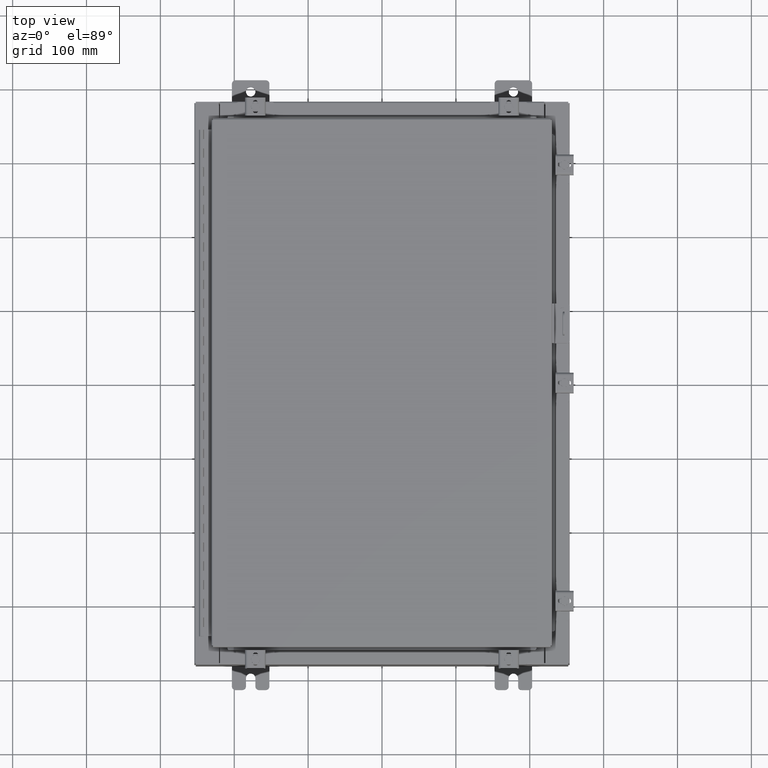
[diagram: clean part render]
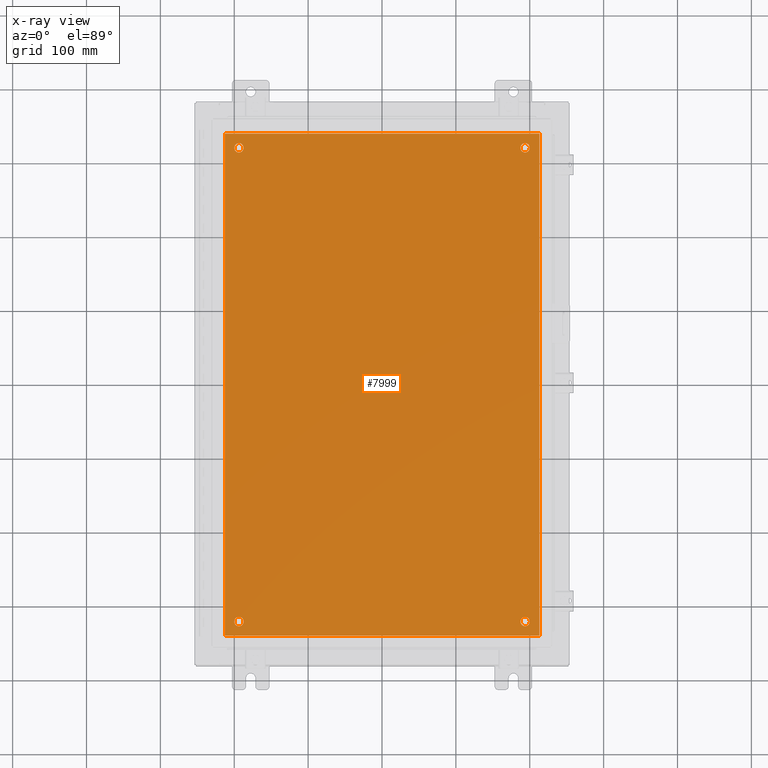
[diagram: x-ray — body ghosted, one internal face saturated and labeled with its STEP entity id]
A machine part, top view, then the same camera in x-ray: the body is ghosted and one INTERNAL B-rep face — a face not visible from any outside direction — is saturated and labeled: STEP entity #7999.
In plain terms, the highlighted planar face has unit normal (0, 0, -1).
Its self-contained STEP definition (entity closure, byte-faithful):
#60 = CIRCLE ( 'NONE', #16790, 0.2499999999999998100 ) ;
#804 = DIRECTION ( 'NONE',  ( 1.000000000000000000, -0.0000000000000000000, -0.0000000000000000000 ) ) ;
#1036 = FACE_OUTER_BOUND ( 'NONE', #19308, .T. ) ;
#1048 = CARTESIAN_POINT ( 'NONE',  ( -7.625000000000002700, 12.62500000000000200, -0.1039999999999999800 ) ) ;
#1509 = VERTEX_POINT ( 'NONE', #8408 ) ;
#2265 = CARTESIAN_POINT ( 'NONE',  ( 7.875000000000001800, 12.62500000000000200, -0.1039999999999999800 ) ) ;
#2455 = AXIS2_PLACEMENT_3D ( 'NONE', #33242, #15738, #36247 ) ;
#2548 = DIRECTION ( 'NONE',  ( 0.0000000000000000000, 0.0000000000000000000, -1.000000000000000000 ) ) ;
#2684 = ORIENTED_EDGE ( 'NONE', *, *, #2820, .T. ) ;
#2820 = EDGE_CURVE ( 'NONE', #30189, #2896, #5511, .T. ) ;
#2896 = VERTEX_POINT ( 'NONE', #3041 ) ;
#2925 = AXIS2_PLACEMENT_3D ( 'NONE', #17126, #2548, #23041 ) ;
#2930 = EDGE_LOOP ( 'NONE', ( #16578, #10078 ) ) ;
#3041 = CARTESIAN_POINT ( 'NONE',  ( 7.375000000000004400, 12.62500000000000200, -0.1039999999999999800 ) ) ;
#3477 = AXIS2_PLACEMENT_3D ( 'NONE', #31994, #14468, #34978 ) ;
#3677 = CARTESIAN_POINT ( 'NONE',  ( 7.375000000000004400, -12.62500000000000200, -0.1039999999999999800 ) ) ;
#3960 = DIRECTION ( 'NONE',  ( -1.000000000000000000, 0.0000000000000000000, 0.0000000000000000000 ) ) ;
#4569 = ORIENTED_EDGE ( 'NONE', *, *, #20819, .T. ) ;
#4650 = CARTESIAN_POINT ( 'NONE',  ( -7.375000000000003600, 12.62500000000000200, -0.1039999999999999800 ) ) ;
#4660 = CARTESIAN_POINT ( 'NONE',  ( -7.875000000000002700, 12.62500000000000200, -0.1039999999999999800 ) ) ;
#4777 = CIRCLE ( 'NONE', #18439, 0.2499999999999998100 ) ;
#5089 = CIRCLE ( 'NONE', #27364, 0.2499999999999987000 ) ;
#5511 = CIRCLE ( 'NONE', #6885, 0.2499999999999987000 ) ;
#5847 = DIRECTION ( 'NONE',  ( -0.0000000000000000000, -0.0000000000000000000, 1.000000000000000000 ) ) ;
#6259 = CIRCLE ( 'NONE', #33606, 0.2499999999999998100 ) ;
#6885 = AXIS2_PLACEMENT_3D ( 'NONE', #34915, #17353, #37862 ) ;
#6994 = CARTESIAN_POINT ( 'NONE',  ( 7.625000000000002700, -12.62500000000000200, -0.1039999999999999800 ) ) ;
#7409 = LINE ( 'NONE', #11252, #37678 ) ;
#7999 = ADVANCED_FACE ( 'NONE', ( #8764, #32131, #9679, #16582, #1036 ), #34672, .T. ) ;
#8408 = CARTESIAN_POINT ( 'NONE',  ( -7.875000000000002700, -12.62500000000000200, -0.1039999999999999800 ) ) ;
#8764 = FACE_BOUND ( 'NONE', #14816, .T. ) ;
#9449 = ORIENTED_EDGE ( 'NONE', *, *, #13815, .F. ) ;
#9679 = FACE_BOUND ( 'NONE', #33870, .T. ) ;
#9902 = DIRECTION ( 'NONE',  ( -1.000000000000000000, 0.0000000000000000000, 0.0000000000000000000 ) ) ;
#10078 = ORIENTED_EDGE ( 'NONE', *, *, #14564, .T. ) ;
#10693 = EDGE_CURVE ( 'NONE', #30695, #17554, #6259, .T. ) ;
#10754 = VERTEX_POINT ( 'NONE', #29385 ) ;
#11252 = CARTESIAN_POINT ( 'NONE',  ( 8.383000000000002700, -13.38299999999999200, -0.1039999999999992700 ) ) ;
#12188 = VECTOR ( 'NONE', #18573, 39.37007874015748100 ) ;
#13246 = VERTEX_POINT ( 'NONE', #26200 ) ;
#13815 = EDGE_CURVE ( 'NONE', #10754, #13246, #7409, .T. ) ;
#14252 = DIRECTION ( 'NONE',  ( 0.0000000000000000000, 1.000000000000000000, 0.0000000000000000000 ) ) ;
#14468 = DIRECTION ( 'NONE',  ( -0.0000000000000000000, -0.0000000000000000000, 1.000000000000000000 ) ) ;
#14564 = EDGE_CURVE ( 'NONE', #17554, #30695, #60, .T. ) ;
#14816 = EDGE_LOOP ( 'NONE', ( #32390, #32197 ) ) ;
#14881 = CARTESIAN_POINT ( 'NONE',  ( 7.625000000000002700, -12.62500000000000200, -0.1039999999999999800 ) ) ;
#15738 = DIRECTION ( 'NONE',  ( -0.0000000000000000000, -0.0000000000000000000, 1.000000000000000000 ) ) ;
#16020 = LINE ( 'NONE', #18344, #22901 ) ;
#16091 = ORIENTED_EDGE ( 'NONE', *, *, #16784, .F. ) ;
#16158 = CARTESIAN_POINT ( 'NONE',  ( -7.625000000000002700, -12.62500000000000200, -0.1039999999999999800 ) ) ;
#16207 = CIRCLE ( 'NONE', #3477, 0.2499999999999998100 ) ;
#16491 = LINE ( 'NONE', #24037, #31113 ) ;
#16578 = ORIENTED_EDGE ( 'NONE', *, *, #10693, .T. ) ;
#16582 = FACE_BOUND ( 'NONE', #2930, .T. ) ;
#16784 = EDGE_CURVE ( 'NONE', #37192, #27492, #20023, .T. ) ;
#16790 = AXIS2_PLACEMENT_3D ( 'NONE', #1048, #21515, #3960 ) ;
#17126 = CARTESIAN_POINT ( 'NONE',  ( 0.0000000000000000000, 0.0000000000000000000, -0.1039999999999999800 ) ) ;
#17353 = DIRECTION ( 'NONE',  ( -0.0000000000000000000, -0.0000000000000000000, 1.000000000000000000 ) ) ;
#17554 = VERTEX_POINT ( 'NONE', #4660 ) ;
#17828 = DIRECTION ( 'NONE',  ( -1.000000000000000000, 0.0000000000000000000, 0.0000000000000000000 ) ) ;
#18344 = CARTESIAN_POINT ( 'NONE',  ( -8.500000000000000000, -13.38299999999999400, -0.1040000000000009100 ) ) ;
#18439 = AXIS2_PLACEMENT_3D ( 'NONE', #16158, #36650, #19097 ) ;
#18573 = DIRECTION ( 'NONE',  ( 0.0000000000000000000, -1.000000000000000000, 0.0000000000000000000 ) ) ;
#18680 = CIRCLE ( 'NONE', #2455, 0.2499999999999987000 ) ;
#19097 = DIRECTION ( 'NONE',  ( -1.000000000000000000, 0.0000000000000000000, 0.0000000000000000000 ) ) ;
#19308 = EDGE_LOOP ( 'NONE', ( #30703, #16091, #21913, #9449 ) ) ;
#19586 = EDGE_CURVE ( 'NONE', #1509, #21659, #16207, .T. ) ;
#20023 = LINE ( 'NONE', #33128, #12188 ) ;
#20161 = CARTESIAN_POINT ( 'NONE',  ( -7.375000000000003600, -12.62500000000000200, -0.1039999999999999800 ) ) ;
#20819 = EDGE_CURVE ( 'NONE', #33815, #34192, #28437, .T. ) ;
#21515 = DIRECTION ( 'NONE',  ( -0.0000000000000000000, -0.0000000000000000000, 1.000000000000000000 ) ) ;
#21659 = VERTEX_POINT ( 'NONE', #20161 ) ;
#21913 = ORIENTED_EDGE ( 'NONE', *, *, #33807, .F. ) ;
#21918 = EDGE_CURVE ( 'NONE', #27492, #10754, #16020, .T. ) ;
#22901 = VECTOR ( 'NONE', #804, 39.37007874015748100 ) ;
#23041 = DIRECTION ( 'NONE',  ( -1.000000000000000000, 0.0000000000000000000, -0.0000000000000000000 ) ) ;
#23420 = CARTESIAN_POINT ( 'NONE',  ( -7.625000000000002700, 12.62500000000000200, -0.1039999999999999800 ) ) ;
#24037 = CARTESIAN_POINT ( 'NONE',  ( 8.500000000000001800, 13.38300000000000300, -0.1040000000000009100 ) ) ;
#24119 = AXIS2_PLACEMENT_3D ( 'NONE', #6994, #27449, #9902 ) ;
#26200 = CARTESIAN_POINT ( 'NONE',  ( 8.383000000000002700, 13.38300000000000100, -0.1039999999999992700 ) ) ;
#26345 = DIRECTION ( 'NONE',  ( -1.000000000000000000, 0.0000000000000000000, 0.0000000000000000000 ) ) ;
#27364 = AXIS2_PLACEMENT_3D ( 'NONE', #14881, #35397, #17828 ) ;
#27449 = DIRECTION ( 'NONE',  ( -0.0000000000000000000, -0.0000000000000000000, 1.000000000000000000 ) ) ;
#27492 = VERTEX_POINT ( 'NONE', #31532 ) ;
#28176 = EDGE_CURVE ( 'NONE', #34192, #33815, #5089, .T. ) ;
#28437 = CIRCLE ( 'NONE', #24119, 0.2499999999999987000 ) ;
#29385 = CARTESIAN_POINT ( 'NONE',  ( 8.383000000000002700, -13.38299999999999200, -0.1039999999999992700 ) ) ;
#29790 = CARTESIAN_POINT ( 'NONE',  ( -8.383000000000000900, 13.38300000000000100, -0.1039999999999998300 ) ) ;
#30189 = VERTEX_POINT ( 'NONE', #2265 ) ;
#30695 = VERTEX_POINT ( 'NONE', #4650 ) ;
#30703 = ORIENTED_EDGE ( 'NONE', *, *, #21918, .F. ) ;
#31113 = VECTOR ( 'NONE', #35695, 39.37007874015748100 ) ;
#31532 = CARTESIAN_POINT ( 'NONE',  ( -8.383000000000000900, -13.38299999999999400, -0.1040000000000009100 ) ) ;
#31994 = CARTESIAN_POINT ( 'NONE',  ( -7.625000000000002700, -12.62500000000000200, -0.1039999999999999800 ) ) ;
#32131 = FACE_BOUND ( 'NONE', #37497, .T. ) ;
#32197 = ORIENTED_EDGE ( 'NONE', *, *, #19586, .T. ) ;
#32390 = ORIENTED_EDGE ( 'NONE', *, *, #36775, .T. ) ;
#33128 = CARTESIAN_POINT ( 'NONE',  ( -8.383000000000000900, 13.38300000000000100, -0.1039999999999998300 ) ) ;
#33242 = CARTESIAN_POINT ( 'NONE',  ( 7.625000000000002700, 12.62500000000000200, -0.1039999999999999800 ) ) ;
#33606 = AXIS2_PLACEMENT_3D ( 'NONE', #23420, #5847, #26345 ) ;
#33807 = EDGE_CURVE ( 'NONE', #13246, #37192, #16491, .T. ) ;
#33815 = VERTEX_POINT ( 'NONE', #3677 ) ;
#33870 = EDGE_LOOP ( 'NONE', ( #2684, #33907 ) ) ;
#33907 = ORIENTED_EDGE ( 'NONE', *, *, #35459, .T. ) ;
#34192 = VERTEX_POINT ( 'NONE', #34617 ) ;
#34617 = CARTESIAN_POINT ( 'NONE',  ( 7.875000000000001800, -12.62500000000000200, -0.1039999999999999800 ) ) ;
#34672 = PLANE ( 'NONE',  #2925 ) ;
#34915 = CARTESIAN_POINT ( 'NONE',  ( 7.625000000000002700, 12.62500000000000200, -0.1039999999999999800 ) ) ;
#34978 = DIRECTION ( 'NONE',  ( -1.000000000000000000, 0.0000000000000000000, 0.0000000000000000000 ) ) ;
#35397 = DIRECTION ( 'NONE',  ( -0.0000000000000000000, -0.0000000000000000000, 1.000000000000000000 ) ) ;
#35459 = EDGE_CURVE ( 'NONE', #2896, #30189, #18680, .T. ) ;
#35695 = DIRECTION ( 'NONE',  ( -1.000000000000000000, -0.0000000000000000000, -0.0000000000000000000 ) ) ;
#36247 = DIRECTION ( 'NONE',  ( -1.000000000000000000, 0.0000000000000000000, 0.0000000000000000000 ) ) ;
#36650 = DIRECTION ( 'NONE',  ( -0.0000000000000000000, -0.0000000000000000000, 1.000000000000000000 ) ) ;
#36722 = ORIENTED_EDGE ( 'NONE', *, *, #28176, .T. ) ;
#36775 = EDGE_CURVE ( 'NONE', #21659, #1509, #4777, .T. ) ;
#37192 = VERTEX_POINT ( 'NONE', #29790 ) ;
#37497 = EDGE_LOOP ( 'NONE', ( #36722, #4569 ) ) ;
#37678 = VECTOR ( 'NONE', #14252, 39.37007874015748100 ) ;
#37862 = DIRECTION ( 'NONE',  ( -1.000000000000000000, 0.0000000000000000000, 0.0000000000000000000 ) ) ;